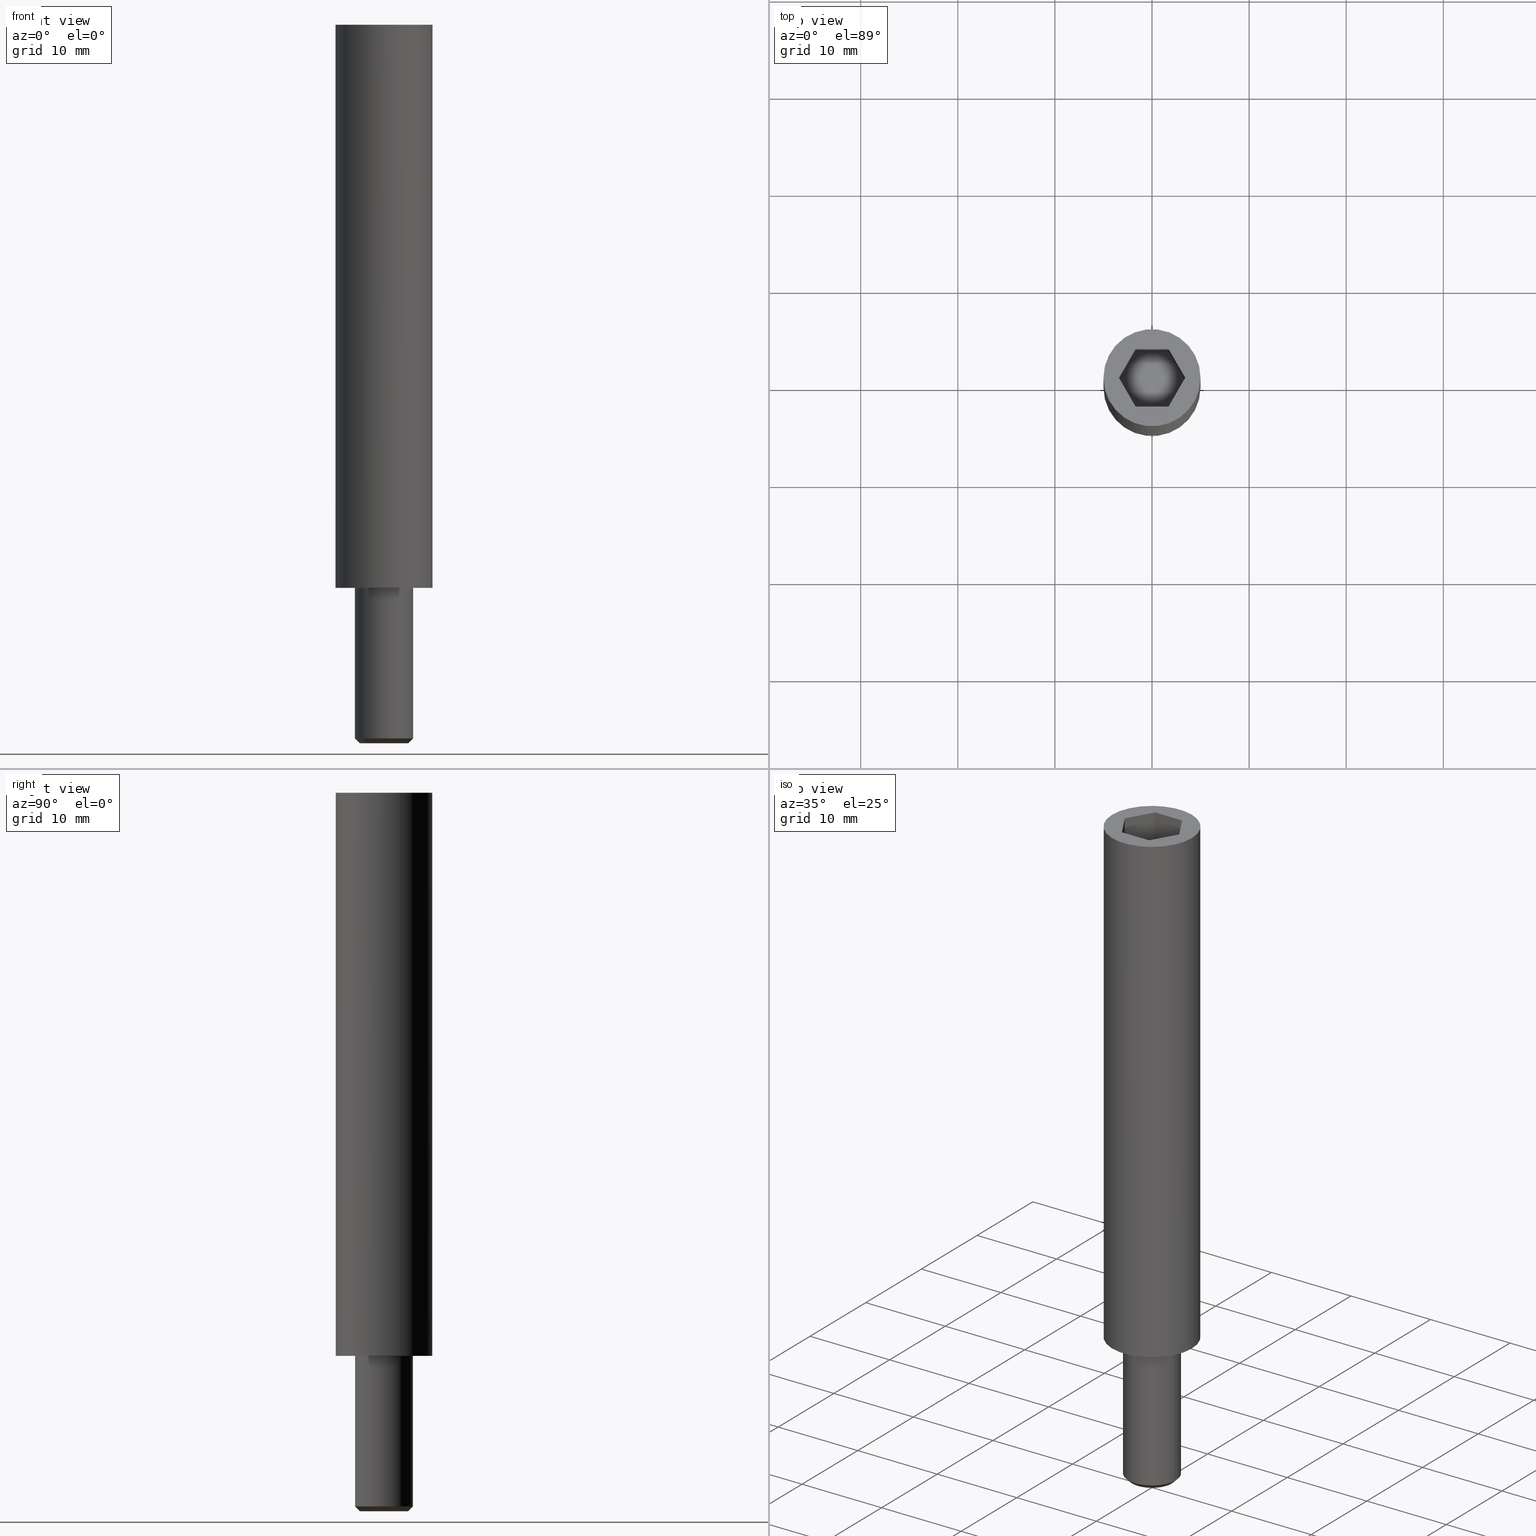
[diagram: canonical four-view strip — front | top / right | iso, engineering-drawing reading convention]
A machine part, canonical four-view strip (front | top / right | iso — engineering-drawing reading convention). The complete STEP part file that produces these views, byte-faithful:
ISO-10303-21;
HEADER;
/****************************************************************
 * Generated by software with PDE/Lib inside                    *
 * PDElib Version v4.4, created Mon 02/23/2004                  *
 * International Technegroup Inc. (www.iti-oh.com)              *
 ****************************************************************/
FILE_DESCRIPTION(('STEP AP203'),'2;1');
FILE_NAME('XT10202.stp','2011-02-02T13:17:27',(''),(''),'2009.3.110','THINKDESIGN','');
FILE_SCHEMA(('CONFIG_CONTROL_DESIGN'));
ENDSEC;
DATA;
#2=CARTESIAN_POINT('',(10.0,-9.999999999999996,58.0));
#3=DIRECTION('',(0.0,0.0,1.0));
#4=DIRECTION('',(0.0,1.0,0.0));
#5=AXIS2_PLACEMENT_3D('',#2,#3,#4);
#6=PLANE('',#5);
#7=CARTESIAN_POINT('',(5.0,3.551476E-015,58.0));
#8=VERTEX_POINT('',#7);
#9=CARTESIAN_POINT('',(-5.0,3.551476E-015,58.0));
#10=VERTEX_POINT('',#9);
#11=CARTESIAN_POINT('',(0.0,3.551476E-015,58.0));
#12=DIRECTION('',(0.0,-6.123234E-017,-1.0));
#13=DIRECTION('',(-1.0,0.0,0.0));
#14=AXIS2_PLACEMENT_3D('',#11,#12,#13);
#15=CIRCLE('',#14,5.0);
#16=EDGE_CURVE('',#8,#10,#15,.T.);
#17=ORIENTED_EDGE('',*,*,#16,.F.);
#18=CARTESIAN_POINT('',(0.0,3.551476E-015,58.0));
#19=DIRECTION('',(0.0,-6.123234E-017,-1.0));
#20=DIRECTION('',(-1.0,0.0,0.0));
#21=AXIS2_PLACEMENT_3D('',#18,#19,#20);
#22=CIRCLE('',#21,5.0);
#23=EDGE_CURVE('',#10,#8,#22,.T.);
#24=ORIENTED_EDGE('',*,*,#23,.F.);
#25=EDGE_LOOP('',(#17,#24));
#26=FACE_OUTER_BOUND('',#25,.T.);
#27=CARTESIAN_POINT('',(1.710586138472991,2.962822102557770,57.999999999999886));
#28=VERTEX_POINT('',#27);
#29=CARTESIAN_POINT('',(-1.710586138472536,2.962822102557770,57.999999999999886));
#30=VERTEX_POINT('',#29);
#31=CARTESIAN_POINT('',(1.710586138472991,2.962822102557770,57.999999999999886));
#32=DIRECTION('',(-1.0,0.0,0.0));
#33=VECTOR('',#32,3.421172276945526);
#34=LINE('',#31,#33);
#35=EDGE_CURVE('',#28,#30,#34,.T.);
#36=ORIENTED_EDGE('',*,*,#35,.F.);
#37=CARTESIAN_POINT('',(3.421172276945413,3.551476E-015,57.999999999999886));
#38=VERTEX_POINT('',#37);
#39=CARTESIAN_POINT('',(3.421172276945413,3.552714E-015,57.999999999999886));
#40=DIRECTION('',(-0.499999999999939,0.866025403784474,0.0));
#41=VECTOR('',#40,3.421172276945260);
#42=LINE('',#39,#41);
#43=EDGE_CURVE('',#38,#28,#42,.T.);
#44=ORIENTED_EDGE('',*,*,#43,.F.);
#45=CARTESIAN_POINT('',(1.710586138472991,-2.962822102557819,57.999999999999886));
#46=VERTEX_POINT('',#45);
#47=CARTESIAN_POINT('',(1.710586138472990,-2.962822102557820,57.999999999999886));
#48=DIRECTION('',(0.499999999999932,0.866025403784478,0.0));
#49=VECTOR('',#48,3.421172276945309);
#50=LINE('',#47,#49);
#51=EDGE_CURVE('',#46,#38,#50,.T.);
#52=ORIENTED_EDGE('',*,*,#51,.F.);
#53=CARTESIAN_POINT('',(-1.710586138472536,-2.962822102557819,57.999999999999886));
#54=VERTEX_POINT('',#53);
#55=CARTESIAN_POINT('',(-1.710586138472536,-2.962822102557819,57.999999999999886));
#56=DIRECTION('',(1.0,0.0,0.0));
#57=VECTOR('',#56,3.421172276945526);
#58=LINE('',#55,#57);
#59=EDGE_CURVE('',#54,#46,#58,.T.);
#60=ORIENTED_EDGE('',*,*,#59,.F.);
#61=CARTESIAN_POINT('',(-3.421172276945640,3.551476E-015,57.999999999999886));
#62=VERTEX_POINT('',#61);
#63=CARTESIAN_POINT('',(-3.421172276945641,3.552714E-015,57.999999999999886));
#64=DIRECTION('',(0.500000000000082,-0.866025403784391,0.0));
#65=VECTOR('',#64,3.421172276945650);
#66=LINE('',#63,#65);
#67=EDGE_CURVE('',#62,#54,#66,.T.);
#68=ORIENTED_EDGE('',*,*,#67,.F.);
#69=CARTESIAN_POINT('',(-1.710586138472535,2.962822102557770,57.999999999999886));
#70=DIRECTION('',(-0.500000000000089,-0.866025403784387,0.0));
#71=VECTOR('',#70,3.421172276945601);
#72=LINE('',#69,#71);
#73=EDGE_CURVE('',#30,#62,#72,.T.);
#74=ORIENTED_EDGE('',*,*,#73,.F.);
#75=EDGE_LOOP('',(#36,#44,#52,#60,#68,#74));
#76=FACE_BOUND('',#75,.T.);
#77=ADVANCED_FACE('',(#26,#76),#6,.T.);
#78=CARTESIAN_POINT('',(0.0,3.551476E-015,58.0));
#79=DIRECTION('',(0.0,-6.123234E-017,-1.0));
#80=DIRECTION('',(-1.0,0.0,0.0));
#81=AXIS2_PLACEMENT_3D('',#78,#79,#80);
#82=CYLINDRICAL_SURFACE('',#81,5.0);
#83=ORIENTED_EDGE('',*,*,#23,.T.);
#84=ORIENTED_EDGE('',*,*,#16,.T.);
#85=CARTESIAN_POINT('',(-5.0,3.944305E-031,0.0));
#86=VERTEX_POINT('',#85);
#87=CARTESIAN_POINT('',(-5.0,3.551476E-015,58.0));
#88=DIRECTION('',(0.0,0.0,-1.0));
#89=VECTOR('',#88,58.0);
#90=LINE('',#87,#89);
#91=EDGE_CURVE('',#10,#86,#90,.T.);
#92=ORIENTED_EDGE('',*,*,#91,.T.);
#93=CARTESIAN_POINT('',(5.0,3.944305E-031,0.0));
#94=VERTEX_POINT('',#93);
#95=CARTESIAN_POINT('',(0.0,3.944305E-031,0.0));
#96=DIRECTION('',(0.0,-6.123234E-017,-1.0));
#97=DIRECTION('',(-1.0,0.0,0.0));
#98=AXIS2_PLACEMENT_3D('',#95,#96,#97);
#99=CIRCLE('',#98,5.0);
#100=EDGE_CURVE('',#94,#86,#99,.T.);
#101=ORIENTED_EDGE('',*,*,#100,.F.);
#102=CARTESIAN_POINT('',(0.0,3.944305E-031,0.0));
#103=DIRECTION('',(0.0,-6.123234E-017,-1.0));
#104=DIRECTION('',(-1.0,0.0,0.0));
#105=AXIS2_PLACEMENT_3D('',#102,#103,#104);
#106=CIRCLE('',#105,5.0);
#107=EDGE_CURVE('',#86,#94,#106,.T.);
#108=ORIENTED_EDGE('',*,*,#107,.F.);
#109=ORIENTED_EDGE('',*,*,#91,.F.);
#110=EDGE_LOOP('',(#83,#84,#92,#101,#108,#109));
#111=FACE_OUTER_BOUND('',#110,.T.);
#112=ADVANCED_FACE('',(#111),#82,.T.);
#113=CARTESIAN_POINT('',(-10.0,-10.0,0.0));
#114=DIRECTION('',(0.0,0.0,-1.0));
#115=DIRECTION('',(0.0,1.0,0.0));
#116=AXIS2_PLACEMENT_3D('',#113,#114,#115);
#117=PLANE('',#116);
#118=ORIENTED_EDGE('',*,*,#107,.T.);
#119=ORIENTED_EDGE('',*,*,#100,.T.);
#120=EDGE_LOOP('',(#118,#119));
#121=FACE_OUTER_BOUND('',#120,.T.);
#122=CARTESIAN_POINT('',(3.0,3.944305E-031,0.0));
#123=VERTEX_POINT('',#122);
#124=CARTESIAN_POINT('',(-3.0,3.944305E-031,0.0));
#125=VERTEX_POINT('',#124);
#126=CARTESIAN_POINT('',(0.0,3.944305E-031,0.0));
#127=DIRECTION('',(0.0,-6.123234E-017,-1.0));
#128=DIRECTION('',(-1.0,0.0,0.0));
#129=AXIS2_PLACEMENT_3D('',#126,#127,#128);
#130=CIRCLE('',#129,3.0);
#131=EDGE_CURVE('',#123,#125,#130,.T.);
#132=ORIENTED_EDGE('',*,*,#131,.F.);
#133=CARTESIAN_POINT('',(0.0,3.944305E-031,0.0));
#134=DIRECTION('',(0.0,-6.123234E-017,-1.0));
#135=DIRECTION('',(-1.0,0.0,0.0));
#136=AXIS2_PLACEMENT_3D('',#133,#134,#135);
#137=CIRCLE('',#136,3.0);
#138=EDGE_CURVE('',#125,#123,#137,.T.);
#139=ORIENTED_EDGE('',*,*,#138,.F.);
#140=EDGE_LOOP('',(#132,#139));
#141=FACE_BOUND('',#140,.T.);
#142=ADVANCED_FACE('',(#121,#141),#117,.T.);
#143=CARTESIAN_POINT('',(0.0,3.944305E-031,0.0));
#144=DIRECTION('',(0.0,-6.123234E-017,-1.0));
#145=DIRECTION('',(-1.0,0.0,0.0));
#146=AXIS2_PLACEMENT_3D('',#143,#144,#145);
#147=CYLINDRICAL_SURFACE('',#146,3.0);
#148=ORIENTED_EDGE('',*,*,#138,.T.);
#149=ORIENTED_EDGE('',*,*,#131,.T.);
#150=CARTESIAN_POINT('',(-3.0,-9.491013E-016,-15.500000000000000));
#151=VERTEX_POINT('',#150);
#152=CARTESIAN_POINT('',(-3.0,3.944305E-031,0.0));
#153=DIRECTION('',(0.0,0.0,-1.0));
#154=VECTOR('',#153,15.500000000000000);
#155=LINE('',#152,#154);
#156=EDGE_CURVE('',#125,#151,#155,.T.);
#157=ORIENTED_EDGE('',*,*,#156,.T.);
#158=CARTESIAN_POINT('',(3.0,-9.491013E-016,-15.500000000000000));
#159=VERTEX_POINT('',#158);
#160=CARTESIAN_POINT('',(0.0,-9.491013E-016,-15.500000000000000));
#161=DIRECTION('',(0.0,-6.123234E-017,-1.0));
#162=DIRECTION('',(-1.0,0.0,0.0));
#163=AXIS2_PLACEMENT_3D('',#160,#161,#162);
#164=CIRCLE('',#163,3.0);
#165=EDGE_CURVE('',#159,#151,#164,.T.);
#166=ORIENTED_EDGE('',*,*,#165,.F.);
#167=CARTESIAN_POINT('',(0.0,-9.491013E-016,-15.500000000000000));
#168=DIRECTION('',(0.0,-6.123234E-017,-1.0));
#169=DIRECTION('',(-1.0,0.0,0.0));
#170=AXIS2_PLACEMENT_3D('',#167,#168,#169);
#171=CIRCLE('',#170,3.0);
#172=EDGE_CURVE('',#151,#159,#171,.T.);
#173=ORIENTED_EDGE('',*,*,#172,.F.);
#174=ORIENTED_EDGE('',*,*,#156,.F.);
#175=EDGE_LOOP('',(#148,#149,#157,#166,#173,#174));
#176=FACE_OUTER_BOUND('',#175,.T.);
#177=ADVANCED_FACE('',(#176),#147,.T.);
#178=CARTESIAN_POINT('',(-3.0,-9.491013E-016,-15.500000000000000));
#179=CARTESIAN_POINT('',(-3.0,2.999999999999999,-15.500000000000002));
#180=CARTESIAN_POINT('',(0.0,2.999999999999999,-15.500000000000000));
#181=CARTESIAN_POINT('',(3.0,2.999999999999999,-15.500000000000002));
#182=CARTESIAN_POINT('',(3.0,-9.491013E-016,-15.500000000000000));
#183=CARTESIAN_POINT('',(3.0,-3.000000000000001,-15.500000000000002));
#184=CARTESIAN_POINT('',(0.0,-3.000000000000001,-15.500000000000000));
#185=CARTESIAN_POINT('',(-3.0,-3.000000000000001,-15.500000000000002));
#186=CARTESIAN_POINT('',(-3.0,-9.491013E-016,-15.500000000000000));
#187=CARTESIAN_POINT('',(-2.500000000000000,-9.797174E-016,-16.0));
#188=CARTESIAN_POINT('',(-2.500000000000000,2.499999999999999,-16.0));
#189=CARTESIAN_POINT('',(0.0,2.499999999999999,-16.0));
#190=CARTESIAN_POINT('',(2.500000000000000,2.499999999999999,-16.0));
#191=CARTESIAN_POINT('',(2.500000000000000,-9.797174E-016,-16.0));
#192=CARTESIAN_POINT('',(2.500000000000000,-2.500000000000001,-16.0));
#193=CARTESIAN_POINT('',(0.0,-2.500000000000001,-16.0));
#194=CARTESIAN_POINT('',(-2.500000000000000,-2.500000000000001,-16.0));
#195=CARTESIAN_POINT('',(-2.500000000000000,-9.797174E-016,-16.0));
#203=(BOUNDED_SURFACE()B_SPLINE_SURFACE(2,1,((#178,#187),(#179,#188),(#180,#189),(#181,#190),(#182,#191),(#183,#192),(#184,#193),(#185,#194),(#186,#195)),.UNSPECIFIED.,.T.,.F.,.U.)B_SPLINE_SURFACE_WITH_KNOTS((3,2,2,2,3),(2,2),(0.0,0.250000000000000,0.500000000000000,0.750000000000000,1.0),(0.0,0.707106781186548),.UNSPECIFIED.)GEOMETRIC_REPRESENTATION_ITEM()RATIONAL_B_SPLINE_SURFACE(((1.0,1.0),(0.707106781186548,0.707106781186548),(1.0,1.0),(0.707106781186548,0.707106781186548),(1.0,1.0),(0.707106781186548,0.707106781186548),(1.0,1.0),(0.707106781186548,0.707106781186548),(1.0,1.0)))REPRESENTATION_ITEM('')SURFACE());
#204=ORIENTED_EDGE('',*,*,#172,.T.);
#205=ORIENTED_EDGE('',*,*,#165,.T.);
#206=CARTESIAN_POINT('',(-2.500000000000000,-9.797174E-016,-16.0));
#207=VERTEX_POINT('',#206);
#208=CARTESIAN_POINT('',(-3.0,-9.491013E-016,-15.500000000000000));
#209=DIRECTION('',(0.707106781186547,-4.329780E-017,-0.707106781186547));
#210=VECTOR('',#209,0.707106781186548);
#211=LINE('',#208,#210);
#212=EDGE_CURVE('',#151,#207,#211,.T.);
#213=ORIENTED_EDGE('',*,*,#212,.T.);
#214=CARTESIAN_POINT('',(2.500000000000000,-9.797174E-016,-16.0));
#215=VERTEX_POINT('',#214);
#216=CARTESIAN_POINT('',(0.0,-9.797174E-016,-16.0));
#217=DIRECTION('',(0.0,-6.123234E-017,-1.0));
#218=DIRECTION('',(-1.0,0.0,0.0));
#219=AXIS2_PLACEMENT_3D('',#216,#217,#218);
#220=CIRCLE('',#219,2.500000000000000);
#221=EDGE_CURVE('',#215,#207,#220,.T.);
#222=ORIENTED_EDGE('',*,*,#221,.F.);
#223=CARTESIAN_POINT('',(0.0,-9.797174E-016,-16.0));
#224=DIRECTION('',(0.0,-6.123234E-017,-1.0));
#225=DIRECTION('',(-1.0,0.0,0.0));
#226=AXIS2_PLACEMENT_3D('',#223,#224,#225);
#227=CIRCLE('',#226,2.500000000000000);
#228=EDGE_CURVE('',#207,#215,#227,.T.);
#229=ORIENTED_EDGE('',*,*,#228,.F.);
#230=ORIENTED_EDGE('',*,*,#212,.F.);
#231=EDGE_LOOP('',(#204,#205,#213,#222,#229,#230));
#232=FACE_OUTER_BOUND('',#231,.T.);
#233=ADVANCED_FACE('',(#232),#203,.T.);
#234=CARTESIAN_POINT('',(-5.0,-5.000000000000001,-16.0));
#235=DIRECTION('',(0.0,0.0,-1.0));
#236=DIRECTION('',(0.0,1.0,0.0));
#237=AXIS2_PLACEMENT_3D('',#234,#235,#236);
#238=PLANE('',#237);
#239=ORIENTED_EDGE('',*,*,#228,.T.);
#240=ORIENTED_EDGE('',*,*,#221,.T.);
#241=EDGE_LOOP('',(#239,#240));
#242=FACE_OUTER_BOUND('',#241,.T.);
#243=ADVANCED_FACE('',(#242),#238,.T.);
#244=CARTESIAN_POINT('',(1.710586138472991,2.962822102557770,57.999999999999886));
#245=DIRECTION('',(0.0,-1.0,0.0));
#246=DIRECTION('',(-1.0,0.0,0.0));
#247=AXIS2_PLACEMENT_3D('',#244,#245,#246);
#248=PLANE('',#247);
#249=CARTESIAN_POINT('',(1.710586138472991,2.962822102557769,46.232834030816264));
#250=VERTEX_POINT('',#249);
#251=CARTESIAN_POINT('',(1.710586138472991,2.962822102557770,57.999999999999886));
#252=DIRECTION('',(0.0,0.0,-1.0));
#253=VECTOR('',#252,11.767165969183623);
#254=LINE('',#251,#253);
#255=EDGE_CURVE('',#28,#250,#254,.T.);
#256=ORIENTED_EDGE('',*,*,#255,.F.);
#257=ORIENTED_EDGE('',*,*,#35,.T.);
#258=CARTESIAN_POINT('',(-1.710586138472536,2.962822102557769,46.232834030816264));
#259=VERTEX_POINT('',#258);
#260=CARTESIAN_POINT('',(-1.710586138472536,2.962822102557770,57.999999999999886));
#261=DIRECTION('',(0.0,0.0,-1.0));
#262=VECTOR('',#261,11.767165969183623);
#263=LINE('',#260,#262);
#264=EDGE_CURVE('',#30,#259,#263,.T.);
#265=ORIENTED_EDGE('',*,*,#264,.T.);
#266=CARTESIAN_POINT('',(1.710586138472991,2.962822102557769,46.232834030816264));
#267=DIRECTION('',(-1.0,0.0,0.0));
#268=VECTOR('',#267,3.421172276945526);
#269=LINE('',#266,#268);
#270=EDGE_CURVE('',#250,#259,#269,.T.);
#271=ORIENTED_EDGE('',*,*,#270,.F.);
#272=EDGE_LOOP('',(#256,#257,#265,#271));
#273=FACE_OUTER_BOUND('',#272,.T.);
#274=ADVANCED_FACE('',(#273),#248,.T.);
#275=CARTESIAN_POINT('',(-1.710586138472536,2.962822102557770,57.999999999999886));
#276=DIRECTION('',(0.866025403784387,-0.500000000000089,3.061617E-017));
#277=DIRECTION('',(-0.500000000000089,-0.866025403784387,5.302876E-017));
#278=AXIS2_PLACEMENT_3D('',#275,#276,#277);
#279=PLANE('',#278);
#280=ORIENTED_EDGE('',*,*,#264,.F.);
#281=ORIENTED_EDGE('',*,*,#73,.T.);
#282=CARTESIAN_POINT('',(-3.421172276945640,2.830945E-015,46.232834030816264));
#283=VERTEX_POINT('',#282);
#284=CARTESIAN_POINT('',(-3.421172276945640,3.551476E-015,57.999999999999886));
#285=DIRECTION('',(0.0,0.0,-1.0));
#286=VECTOR('',#285,11.767165969183623);
#287=LINE('',#284,#286);
#288=EDGE_CURVE('',#62,#283,#287,.T.);
#289=ORIENTED_EDGE('',*,*,#288,.T.);
#290=CARTESIAN_POINT('',(-1.710586138472535,2.962822102557769,46.232834030816264));
#291=DIRECTION('',(-0.500000000000089,-0.866025403784387,0.0));
#292=VECTOR('',#291,3.421172276945601);
#293=LINE('',#290,#292);
#294=EDGE_CURVE('',#259,#283,#293,.T.);
#295=ORIENTED_EDGE('',*,*,#294,.F.);
#296=EDGE_LOOP('',(#280,#281,#289,#295));
#297=FACE_OUTER_BOUND('',#296,.T.);
#298=ADVANCED_FACE('',(#297),#279,.T.);
#299=CARTESIAN_POINT('',(-3.421172276945640,3.551476E-015,57.999999999999886));
#300=DIRECTION('',(0.866025403784392,0.500000000000082,-3.061617E-017));
#301=DIRECTION('',(0.500000000000082,-0.866025403784392,5.302876E-017));
#302=AXIS2_PLACEMENT_3D('',#299,#300,#301);
#303=PLANE('',#302);
#304=ORIENTED_EDGE('',*,*,#288,.F.);
#305=ORIENTED_EDGE('',*,*,#67,.T.);
#306=CARTESIAN_POINT('',(-1.710586138472536,-2.962822102557820,46.232834030816264));
#307=VERTEX_POINT('',#306);
#308=CARTESIAN_POINT('',(-1.710586138472536,-2.962822102557819,57.999999999999886));
#309=DIRECTION('',(0.0,0.0,-1.0));
#310=VECTOR('',#309,11.767165969183623);
#311=LINE('',#308,#310);
#312=EDGE_CURVE('',#54,#307,#311,.T.);
#313=ORIENTED_EDGE('',*,*,#312,.T.);
#314=CARTESIAN_POINT('',(-3.421172276945641,2.664535E-015,46.232834030816264));
#315=DIRECTION('',(0.500000000000082,-0.866025403784391,0.0));
#316=VECTOR('',#315,3.421172276945650);
#317=LINE('',#314,#316);
#318=EDGE_CURVE('',#283,#307,#317,.T.);
#319=ORIENTED_EDGE('',*,*,#318,.F.);
#320=EDGE_LOOP('',(#304,#305,#313,#319));
#321=FACE_OUTER_BOUND('',#320,.T.);
#322=ADVANCED_FACE('',(#321),#303,.T.);
#323=CARTESIAN_POINT('',(-1.710586138472536,-2.962822102557819,57.999999999999886));
#324=DIRECTION('',(0.0,1.0,0.0));
#325=DIRECTION('',(1.0,0.0,0.0));
#326=AXIS2_PLACEMENT_3D('',#323,#324,#325);
#327=PLANE('',#326);
#328=ORIENTED_EDGE('',*,*,#312,.F.);
#329=ORIENTED_EDGE('',*,*,#59,.T.);
#330=CARTESIAN_POINT('',(1.710586138472991,-2.962822102557820,46.232834030816264));
#331=VERTEX_POINT('',#330);
#332=CARTESIAN_POINT('',(1.710586138472991,-2.962822102557819,57.999999999999886));
#333=DIRECTION('',(0.0,0.0,-1.0));
#334=VECTOR('',#333,11.767165969183623);
#335=LINE('',#332,#334);
#336=EDGE_CURVE('',#46,#331,#335,.T.);
#337=ORIENTED_EDGE('',*,*,#336,.T.);
#338=CARTESIAN_POINT('',(-1.710586138472536,-2.962822102557820,46.232834030816264));
#339=DIRECTION('',(1.0,0.0,0.0));
#340=VECTOR('',#339,3.421172276945526);
#341=LINE('',#338,#340);
#342=EDGE_CURVE('',#307,#331,#341,.T.);
#343=ORIENTED_EDGE('',*,*,#342,.F.);
#344=EDGE_LOOP('',(#328,#329,#337,#343));
#345=FACE_OUTER_BOUND('',#344,.T.);
#346=ADVANCED_FACE('',(#345),#327,.T.);
#347=CARTESIAN_POINT('',(1.710586138472991,-2.962822102557819,57.999999999999886));
#348=DIRECTION('',(-0.866025403784478,0.499999999999932,-3.061617E-017));
#349=DIRECTION('',(0.499999999999932,0.866025403784478,-5.302876E-017));
#350=AXIS2_PLACEMENT_3D('',#347,#348,#349);
#351=PLANE('',#350);
#352=ORIENTED_EDGE('',*,*,#336,.F.);
#353=ORIENTED_EDGE('',*,*,#51,.T.);
#354=CARTESIAN_POINT('',(3.421172276945413,2.830945E-015,46.232834030816264));
#355=VERTEX_POINT('',#354);
#356=CARTESIAN_POINT('',(3.421172276945413,3.551476E-015,57.999999999999886));
#357=DIRECTION('',(0.0,0.0,-1.0));
#358=VECTOR('',#357,11.767165969183623);
#359=LINE('',#356,#358);
#360=EDGE_CURVE('',#38,#355,#359,.T.);
#361=ORIENTED_EDGE('',*,*,#360,.T.);
#362=CARTESIAN_POINT('',(1.710586138472990,-2.962822102557821,46.232834030816264));
#363=DIRECTION('',(0.499999999999932,0.866025403784478,0.0));
#364=VECTOR('',#363,3.421172276945309);
#365=LINE('',#362,#364);
#366=EDGE_CURVE('',#331,#355,#365,.T.);
#367=ORIENTED_EDGE('',*,*,#366,.F.);
#368=EDGE_LOOP('',(#352,#353,#361,#367));
#369=FACE_OUTER_BOUND('',#368,.T.);
#370=ADVANCED_FACE('',(#369),#351,.T.);
#371=CARTESIAN_POINT('',(3.421172276945413,3.551476E-015,57.999999999999886));
#372=DIRECTION('',(-0.866025403784474,-0.499999999999939,3.061617E-017));
#373=DIRECTION('',(-0.499999999999939,0.866025403784474,-5.302876E-017));
#374=AXIS2_PLACEMENT_3D('',#371,#372,#373);
#375=PLANE('',#374);
#376=CARTESIAN_POINT('',(3.421172276945413,2.664535E-015,46.232834030816264));
#377=DIRECTION('',(-0.499999999999939,0.866025403784474,0.0));
#378=VECTOR('',#377,3.421172276945260);
#379=LINE('',#376,#378);
#380=EDGE_CURVE('',#355,#250,#379,.T.);
#381=ORIENTED_EDGE('',*,*,#380,.F.);
#382=ORIENTED_EDGE('',*,*,#360,.F.);
#383=ORIENTED_EDGE('',*,*,#43,.T.);
#384=ORIENTED_EDGE('',*,*,#255,.T.);
#385=EDGE_LOOP('',(#381,#382,#383,#384));
#386=FACE_OUTER_BOUND('',#385,.T.);
#387=ADVANCED_FACE('',(#386),#375,.T.);
#388=CARTESIAN_POINT('',(4.105526732343265,-3.555506523078129,46.232834030816377));
#389=DIRECTION('',(0.0,0.0,1.0));
#390=DIRECTION('',(0.0,1.0,0.0));
#391=AXIS2_PLACEMENT_3D('',#388,#389,#390);
#392=PLANE('',#391);
#393=ORIENTED_EDGE('',*,*,#270,.T.);
#394=ORIENTED_EDGE('',*,*,#294,.T.);
#395=ORIENTED_EDGE('',*,*,#318,.T.);
#396=ORIENTED_EDGE('',*,*,#342,.T.);
#397=ORIENTED_EDGE('',*,*,#366,.T.);
#398=ORIENTED_EDGE('',*,*,#380,.T.);
#399=EDGE_LOOP('',(#393,#394,#395,#396,#397,#398));
#400=FACE_OUTER_BOUND('',#399,.T.);
#401=ADVANCED_FACE('',(#400),#392,.T.);
#402=CLOSED_SHELL('',(#77,#112,#142,#177,#233,#243,#274,#298,#322,#346,#370,#387,#401));
#403=MANIFOLD_SOLID_BREP('',#402);
#409=(NAMED_UNIT(*)PLANE_ANGLE_UNIT()SI_UNIT($,.RADIAN.));
#410=DIMENSIONAL_EXPONENTS(0.0,0.0,0.0,0.0,0.0,0.0,0.0);
#411=PLANE_ANGLE_MEASURE_WITH_UNIT(PLANE_ANGLE_MEASURE(0.017453292500000),#409);
#415=(CONVERSION_BASED_UNIT('DEGREE',#411)NAMED_UNIT(#410)PLANE_ANGLE_UNIT());
#419=(NAMED_UNIT(*)SI_UNIT($,.STERADIAN.)SOLID_ANGLE_UNIT());
#423=(LENGTH_UNIT()NAMED_UNIT(*)SI_UNIT(.MILLI.,.METRE.));
#425=UNCERTAINTY_MEASURE_WITH_UNIT(LENGTH_MEASURE(0.001000000000000),#423,'DISTANCE_ACCURACY_VALUE','');
#427=(GEOMETRIC_REPRESENTATION_CONTEXT(3)GLOBAL_UNCERTAINTY_ASSIGNED_CONTEXT((#425))GLOBAL_UNIT_ASSIGNED_CONTEXT((#415,#419,#423))REPRESENTATION_CONTEXT('thinkdesign','2009.3.110'));
#428=ADVANCED_BREP_SHAPE_REPRESENTATION('',(#403),#427);
#429=APPLICATION_CONTEXT('configuration controlled 3D designs of mechanical parts and assemblies');
#430=APPLICATION_PROTOCOL_DEFINITION('International Standard','config_control_design',1995,#429);
#431=MECHANICAL_CONTEXT('None',#429,'mechanical');
#432=PRODUCT('None','None','None',(#431));
#433=PRODUCT_RELATED_PRODUCT_CATEGORY('detail',$,(#432));
#434=PRODUCT_CATEGORY('part',$);
#435=PRODUCT_CATEGORY_RELATIONSHIP('None','None',#434,#433);
#436=PERSON('PERSON1','None','None',$,$,$);
#437=ORGANIZATION('','None','None');
#438=PERSON_AND_ORGANIZATION(#436,#437);
#439=PERSON_AND_ORGANIZATION_ROLE('design_owner');
#440=CC_DESIGN_PERSON_AND_ORGANIZATION_ASSIGNMENT(#438,#439,(#432));
#441=PRODUCT_DEFINITION_FORMATION_WITH_SPECIFIED_SOURCE('None','None',#432,.NOT_KNOWN.);
#442=PERSON('PERSON2','None','None',$,$,$);
#443=ORGANIZATION('','None','None');
#444=PERSON_AND_ORGANIZATION(#442,#443);
#445=PERSON_AND_ORGANIZATION_ROLE('creator');
#446=CC_DESIGN_PERSON_AND_ORGANIZATION_ASSIGNMENT(#444,#445,(#441));
#447=PERSON('PERSON3','None','None',$,$,$);
#448=ORGANIZATION('','None','None');
#449=PERSON_AND_ORGANIZATION(#447,#448);
#450=PERSON_AND_ORGANIZATION_ROLE('part_supplier');
#451=CC_DESIGN_PERSON_AND_ORGANIZATION_ASSIGNMENT(#449,#450,(#441));
#452=APPROVAL_STATUS('approved');
#453=APPROVAL(#452,'None');
#454=PERSON('PERSON4','None','None',$,$,$);
#455=ORGANIZATION('','None','None');
#456=PERSON_AND_ORGANIZATION(#454,#455);
#457=APPROVAL_ROLE('None');
#458=APPROVAL_PERSON_ORGANIZATION(#456,#453,#457);
#459=CALENDAR_DATE(2011,2,2);
#460=COORDINATED_UNIVERSAL_TIME_OFFSET(0,0,.AHEAD.);
#461=LOCAL_TIME(13,17,27.0,#460);
#462=DATE_AND_TIME(#459,#461);
#463=APPROVAL_DATE_TIME(#462,#453);
#464=CC_DESIGN_APPROVAL(#453,(#441));
#465=SECURITY_CLASSIFICATION_LEVEL('unclassified');
#466=SECURITY_CLASSIFICATION('None','None',#465);
#467=CC_DESIGN_SECURITY_CLASSIFICATION(#466,(#441));
#468=APPROVAL_STATUS('approved');
#469=APPROVAL(#468,'None');
#470=PERSON('PERSON5','None','None',$,$,$);
#471=ORGANIZATION('','None','None');
#472=PERSON_AND_ORGANIZATION(#470,#471);
#473=APPROVAL_ROLE('None');
#474=APPROVAL_PERSON_ORGANIZATION(#472,#469,#473);
#475=CALENDAR_DATE(2011,2,2);
#476=COORDINATED_UNIVERSAL_TIME_OFFSET(0,0,.AHEAD.);
#477=LOCAL_TIME(13,17,27.0,#476);
#478=DATE_AND_TIME(#475,#477);
#479=APPROVAL_DATE_TIME(#478,#469);
#480=CC_DESIGN_APPROVAL(#469,(#466));
#481=PERSON('PERSON6','None','None',$,$,$);
#482=ORGANIZATION('','None','None');
#483=PERSON_AND_ORGANIZATION(#481,#482);
#484=PERSON_AND_ORGANIZATION_ROLE('classification_officer');
#485=CC_DESIGN_PERSON_AND_ORGANIZATION_ASSIGNMENT(#483,#484,(#466));
#486=DATE_TIME_ROLE('classification_date');
#487=CALENDAR_DATE(2011,2,2);
#488=COORDINATED_UNIVERSAL_TIME_OFFSET(0,0,.AHEAD.);
#489=LOCAL_TIME(13,17,27.0,#488);
#490=DATE_AND_TIME(#487,#489);
#491=CC_DESIGN_DATE_AND_TIME_ASSIGNMENT(#490,#486,(#466));
#492=DESIGN_CONTEXT('part definition',#429,'design');
#493=DOCUMENT_TYPE('cad_filename');
#494=DOCUMENT('None','None','None',#493);
#495=PRODUCT_DEFINITION_WITH_ASSOCIATED_DOCUMENTS('None','None',#441,#492,(#494));
#496=PERSON('PERSON7','None','None',$,$,$);
#497=ORGANIZATION('','None','None');
#498=PERSON_AND_ORGANIZATION(#496,#497);
#499=PERSON_AND_ORGANIZATION_ROLE('creator');
#500=CC_DESIGN_PERSON_AND_ORGANIZATION_ASSIGNMENT(#498,#499,(#495));
#501=DATE_TIME_ROLE('creation_date');
#502=CALENDAR_DATE(2011,2,2);
#503=COORDINATED_UNIVERSAL_TIME_OFFSET(0,0,.AHEAD.);
#504=LOCAL_TIME(13,17,27.0,#503);
#505=DATE_AND_TIME(#502,#504);
#506=CC_DESIGN_DATE_AND_TIME_ASSIGNMENT(#505,#501,(#495));
#507=APPROVAL_STATUS('approved');
#508=APPROVAL(#507,'None');
#509=PERSON('PERSON8','None','None',$,$,$);
#510=ORGANIZATION('','None','None');
#511=PERSON_AND_ORGANIZATION(#509,#510);
#512=APPROVAL_ROLE('None');
#513=APPROVAL_PERSON_ORGANIZATION(#511,#508,#512);
#514=CALENDAR_DATE(2011,2,2);
#515=COORDINATED_UNIVERSAL_TIME_OFFSET(0,0,.AHEAD.);
#516=LOCAL_TIME(13,17,27.0,#515);
#517=DATE_AND_TIME(#514,#516);
#518=APPROVAL_DATE_TIME(#517,#508);
#519=CC_DESIGN_APPROVAL(#508,(#495));
#520=PRODUCT_DEFINITION_SHAPE('None','None',#495);
#521=SHAPE_DEFINITION_REPRESENTATION(#520,#428);
#522=DIMENSIONAL_EXPONENTS(0.0,0.0,0.0,0.0,0.0,0.0,0.0);
#523=DIMENSIONAL_EXPONENTS(1.0,0.0,0.0,0.0,0.0,0.0,0.0);
ENDSEC;
END-ISO-10303-21;
